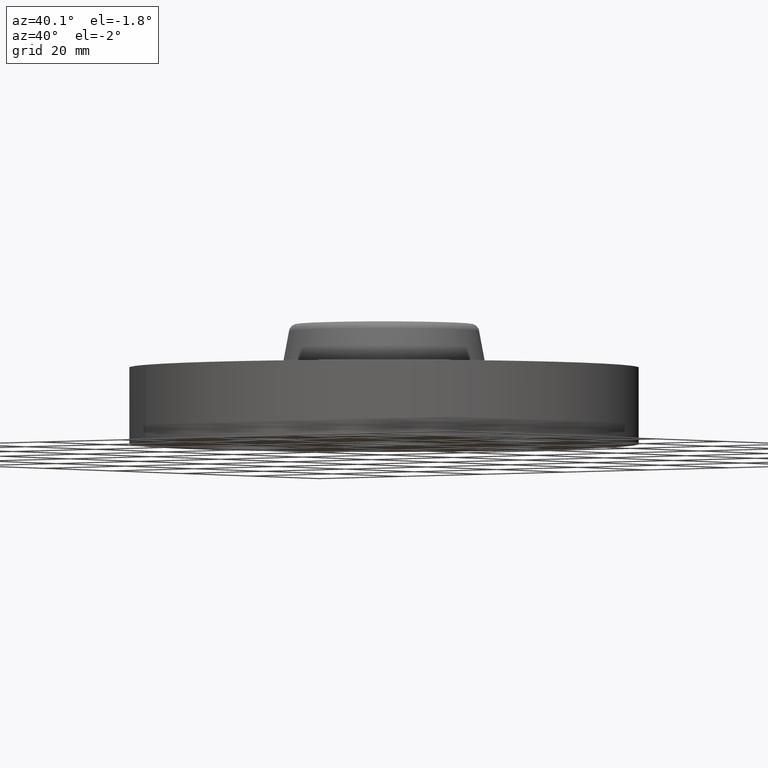
[diagram: clean part render]
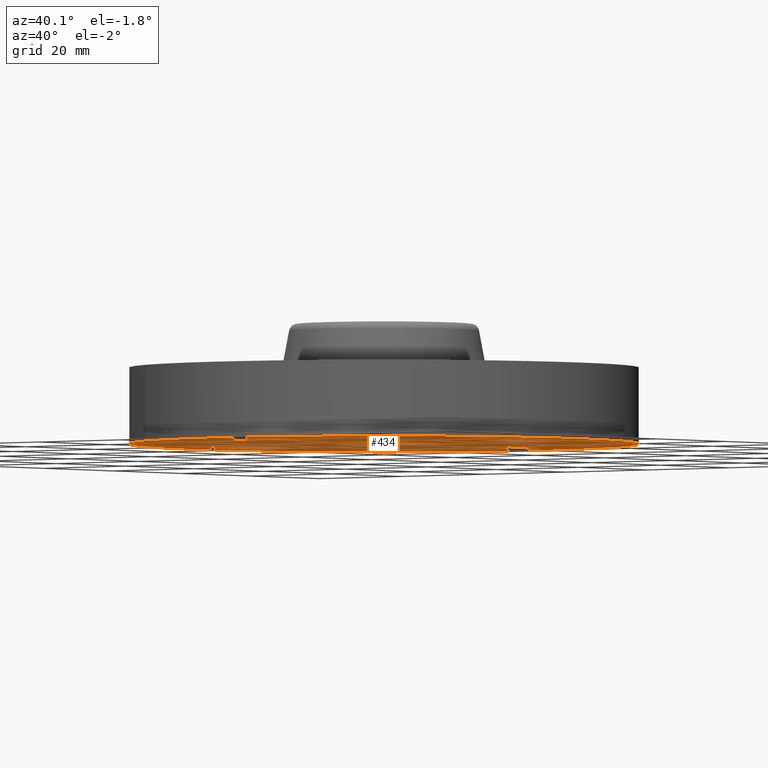
[diagram: same view with one face highlighted and labeled with its STEP entity id]
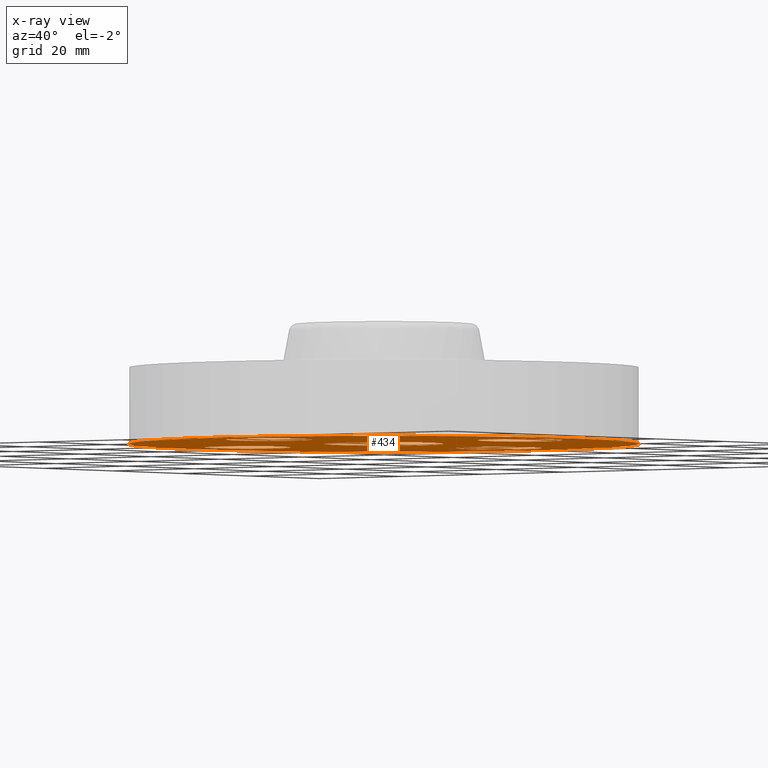
[diagram: x-ray of the same camera — body ghosted, the highlighted face saturated]
A machine part, auxiliary view. The second image highlights one B-rep face of the part: STEP entity #434.
The next image is the same camera in x-ray: the body ghosted, the highlighted face saturated — about 0% of this face is hidden behind the body in this view.
In plain terms, the highlighted planar face has unit normal (0, 0, -1).
Its self-contained STEP definition (entity closure, byte-faithful):
#51=AXIS2_PLACEMENT_3D('Circle Axis2P3D',#49,#50,$) ;
#77=AXIS2_PLACEMENT_3D('Circle Axis2P3D',#75,#76,$) ;
#99=AXIS2_PLACEMENT_3D('Circle Axis2P3D',#97,#98,$) ;
#134=AXIS2_PLACEMENT_3D('Circle Axis2P3D',#132,#133,$) ;
#334=AXIS2_PLACEMENT_3D('Circle Axis2P3D',#332,#333,$) ;
#353=AXIS2_PLACEMENT_3D('Circle Axis2P3D',#351,#352,$) ;
#366=AXIS2_PLACEMENT_3D('Plane Axis2P3D',#363,#364,#365) ;
#382=AXIS2_PLACEMENT_3D('Circle Axis2P3D',#380,#381,$) ;
#391=AXIS2_PLACEMENT_3D('Circle Axis2P3D',#389,#390,$) ;
#400=AXIS2_PLACEMENT_3D('Circle Axis2P3D',#398,#399,$) ;
#409=AXIS2_PLACEMENT_3D('Circle Axis2P3D',#407,#408,$) ;
#418=AXIS2_PLACEMENT_3D('Circle Axis2P3D',#416,#417,$) ;
#427=AXIS2_PLACEMENT_3D('Circle Axis2P3D',#425,#426,$) ;
#44=CARTESIAN_POINT('Vertex',(1.03356149301,0.151019044661,-6.99353086378E-017)) ;
#49=CARTESIAN_POINT('Axis2P3D Location',(1.31000000001,0.,0.)) ;
#53=CARTESIAN_POINT('Vertex',(1.586438507,-0.151019044661,-6.99353086378E-017)) ;
#75=CARTESIAN_POINT('Axis2P3D Location',(1.31000000001,0.,0.)) ;
#97=CARTESIAN_POINT('Axis2P3D Location',(0.,0.,1.39870617276E-016)) ;
#101=CARTESIAN_POINT('Vertex',(-0.898922884886,-1.64546730355,1.39870617276E-016)) ;
#103=CARTESIAN_POINT('Vertex',(0.898922884886,1.64546730355,1.39870617276E-016)) ;
#132=CARTESIAN_POINT('Axis2P3D Location',(0.,0.,1.39870617276E-016)) ;
#329=CARTESIAN_POINT('Vertex',(-0.210947236987,-0.386136327233,-7.83275456743E-015)) ;
#332=CARTESIAN_POINT('Axis2P3D Location',(0.,0.,-7.83275456743E-015)) ;
#336=CARTESIAN_POINT('Vertex',(0.210947236987,0.386136327233,-7.83275456743E-015)) ;
#351=CARTESIAN_POINT('Axis2P3D Location',(0.,0.,-7.83275456743E-015)) ;
#363=CARTESIAN_POINT('Axis2P3D Location',(0.,0.440000000002,0.)) ;
#380=CARTESIAN_POINT('Axis2P3D Location',(-1.04902962957E-016,-1.31000000001,0.)) ;
#384=CARTESIAN_POINT('Vertex',(0.151019044661,-1.03356149301,0.)) ;
#386=CARTESIAN_POINT('Vertex',(-0.151019044661,-1.586438507,0.)) ;
#389=CARTESIAN_POINT('Axis2P3D Location',(-1.74838271595E-016,-1.31000000001,0.)) ;
#398=CARTESIAN_POINT('Axis2P3D Location',(-1.31000000001,-1.39870617276E-016,0.)) ;
#402=CARTESIAN_POINT('Vertex',(-1.03356149301,-0.151019044661,0.)) ;
#404=CARTESIAN_POINT('Vertex',(-1.586438507,0.151019044661,0.)) ;
#407=CARTESIAN_POINT('Axis2P3D Location',(-1.31000000001,-6.99353086378E-017,0.)) ;
#416=CARTESIAN_POINT('Axis2P3D Location',(-3.1470888887E-016,1.31000000001,0.)) ;
#420=CARTESIAN_POINT('Vertex',(-0.151019044661,1.03356149301,0.)) ;
#422=CARTESIAN_POINT('Vertex',(0.151019044661,1.586438507,0.)) ;
#425=CARTESIAN_POINT('Axis2P3D Location',(-3.84644197508E-016,1.31000000001,0.)) ;
#50=DIRECTION('Axis2P3D Direction',(0.,-0.,-0.0393700787402)) ;
#76=DIRECTION('Axis2P3D Direction',(0.,-0.,-0.0393700787402)) ;
#98=DIRECTION('Axis2P3D Direction',(0.,0.,-0.0393700787402)) ;
#133=DIRECTION('Axis2P3D Direction',(0.,0.,-0.0393700787402)) ;
#333=DIRECTION('Axis2P3D Direction',(0.,0.,-0.0393700787402)) ;
#352=DIRECTION('Axis2P3D Direction',(0.,0.,-0.0393700787402)) ;
#364=DIRECTION('Axis2P3D Direction',(0.,0.,-0.0393700787402)) ;
#365=DIRECTION('Axis2P3D XDirection',(0.0393700787402,0.,0.)) ;
#381=DIRECTION('Axis2P3D Direction',(0.,0.,-0.0393700787402)) ;
#390=DIRECTION('Axis2P3D Direction',(0.,0.,-0.0393700787402)) ;
#399=DIRECTION('Axis2P3D Direction',(0.,0.,-0.0393700787402)) ;
#408=DIRECTION('Axis2P3D Direction',(0.,0.,-0.0393700787402)) ;
#417=DIRECTION('Axis2P3D Direction',(0.,0.,-0.0393700787402)) ;
#426=DIRECTION('Axis2P3D Direction',(0.,0.,-0.0393700787402)) ;
#369=ORIENTED_EDGE('',*,*,#105,.T.) ;
#370=ORIENTED_EDGE('',*,*,#136,.T.) ;
#373=ORIENTED_EDGE('',*,*,#79,.F.) ;
#374=ORIENTED_EDGE('',*,*,#55,.F.) ;
#377=ORIENTED_EDGE('',*,*,#355,.F.) ;
#378=ORIENTED_EDGE('',*,*,#338,.F.) ;
#395=ORIENTED_EDGE('',*,*,#388,.F.) ;
#396=ORIENTED_EDGE('',*,*,#393,.F.) ;
#413=ORIENTED_EDGE('',*,*,#406,.F.) ;
#414=ORIENTED_EDGE('',*,*,#411,.F.) ;
#431=ORIENTED_EDGE('',*,*,#424,.F.) ;
#432=ORIENTED_EDGE('',*,*,#429,.F.) ;
#375=FACE_BOUND('',#372,.T.) ;
#379=FACE_BOUND('',#376,.T.) ;
#397=FACE_BOUND('',#394,.T.) ;
#415=FACE_BOUND('',#412,.T.) ;
#433=FACE_BOUND('',#430,.T.) ;
#434=ADVANCED_FACE('PartBody',(#371,#375,#379,#397,#415,#433),#367,.T.) ;
#52=CIRCLE('generated circle',#51,0.315000000001) ;
#78=CIRCLE('generated circle',#77,0.315000000001) ;
#100=CIRCLE('generated circle',#99,1.87500000001) ;
#135=CIRCLE('generated circle',#134,1.87500000001) ;
#335=CIRCLE('generated circle',#334,0.440000000002) ;
#354=CIRCLE('generated circle',#353,0.440000000002) ;
#383=CIRCLE('generated circle',#382,0.315000000001) ;
#392=CIRCLE('generated circle',#391,0.315000000001) ;
#401=CIRCLE('generated circle',#400,0.315000000001) ;
#410=CIRCLE('generated circle',#409,0.315000000001) ;
#419=CIRCLE('generated circle',#418,0.315000000001) ;
#428=CIRCLE('generated circle',#427,0.315000000001) ;
#55=EDGE_CURVE('',#45,#54,#52,.T.) ;
#79=EDGE_CURVE('',#54,#45,#78,.T.) ;
#105=EDGE_CURVE('',#102,#104,#100,.T.) ;
#136=EDGE_CURVE('',#104,#102,#135,.T.) ;
#338=EDGE_CURVE('',#330,#337,#335,.T.) ;
#355=EDGE_CURVE('',#337,#330,#354,.T.) ;
#388=EDGE_CURVE('',#385,#387,#383,.T.) ;
#393=EDGE_CURVE('',#387,#385,#392,.T.) ;
#406=EDGE_CURVE('',#403,#405,#401,.T.) ;
#411=EDGE_CURVE('',#405,#403,#410,.T.) ;
#424=EDGE_CURVE('',#421,#423,#419,.T.) ;
#429=EDGE_CURVE('',#423,#421,#428,.T.) ;
#368=EDGE_LOOP('',(#369,#370)) ;
#372=EDGE_LOOP('',(#373,#374)) ;
#376=EDGE_LOOP('',(#377,#378)) ;
#394=EDGE_LOOP('',(#395,#396)) ;
#412=EDGE_LOOP('',(#413,#414)) ;
#430=EDGE_LOOP('',(#431,#432)) ;
#371=FACE_OUTER_BOUND('',#368,.T.) ;
#367=PLANE('',#366) ;
#45=VERTEX_POINT('',#44) ;
#54=VERTEX_POINT('',#53) ;
#102=VERTEX_POINT('',#101) ;
#104=VERTEX_POINT('',#103) ;
#330=VERTEX_POINT('',#329) ;
#337=VERTEX_POINT('',#336) ;
#385=VERTEX_POINT('',#384) ;
#387=VERTEX_POINT('',#386) ;
#403=VERTEX_POINT('',#402) ;
#405=VERTEX_POINT('',#404) ;
#421=VERTEX_POINT('',#420) ;
#423=VERTEX_POINT('',#422) ;